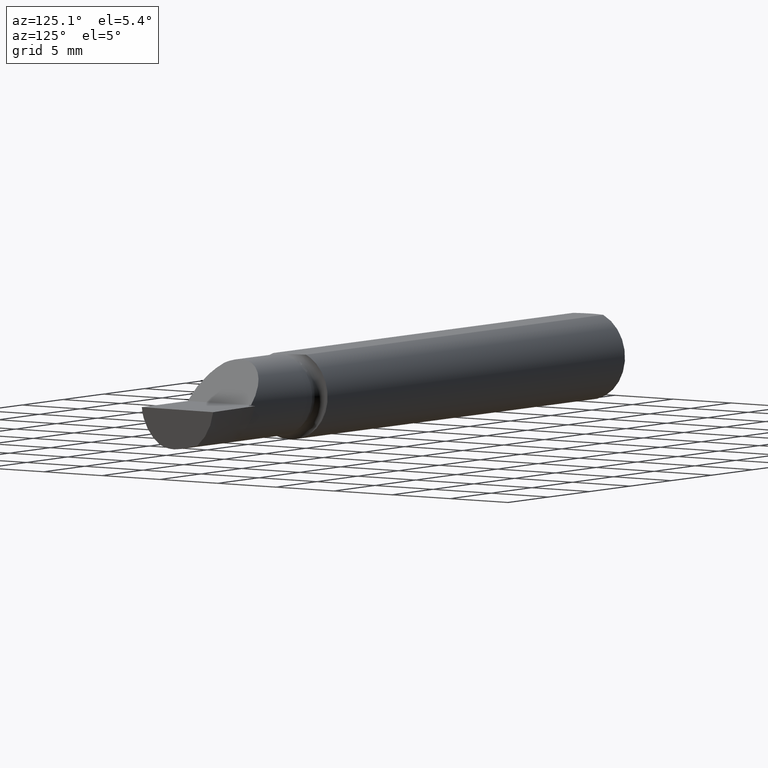
[diagram: clean part render]
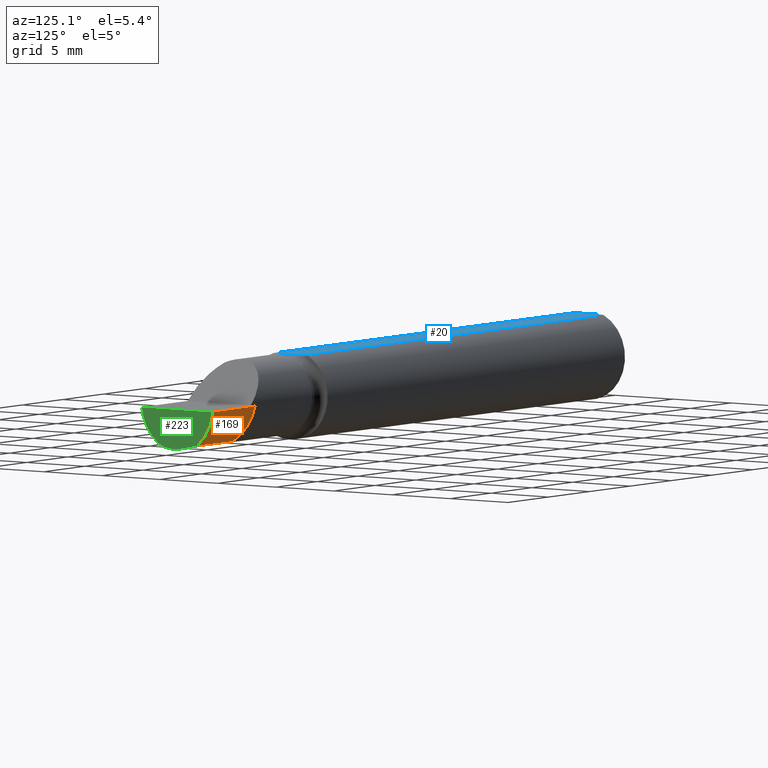
[diagram: same view with three faces highlighted in distinct colors, each labeled with its STEP entity id]
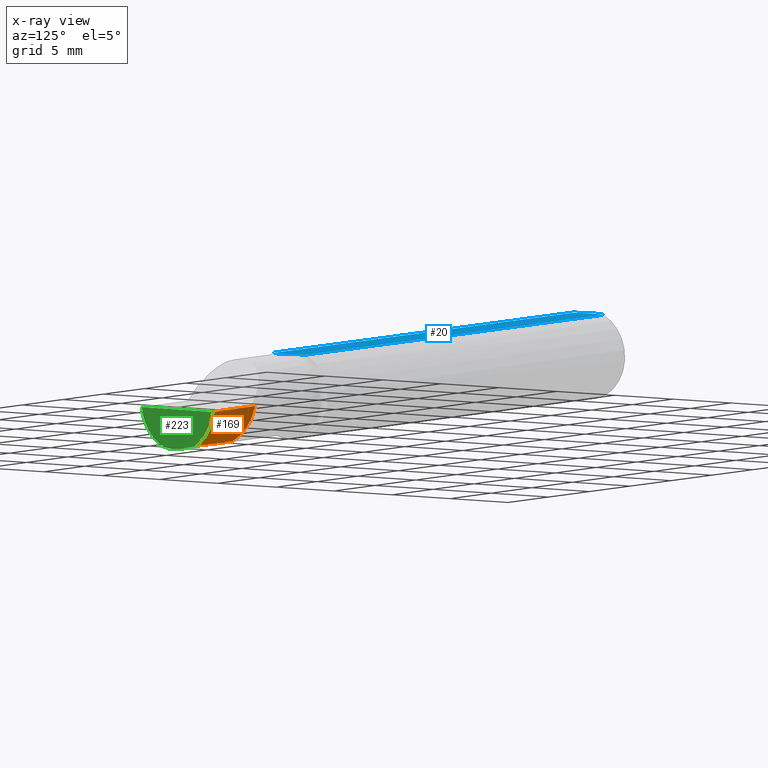
[diagram: x-ray of the same camera — body ghosted, the three highlighted faces saturated]
A machine part, auxiliary view with three faces highlighted in distinct colors.
The next image is the same camera in x-ray (body ghosted, the three faces saturated) — at least one of them is partly hidden behind the body in this view.
Their STEP definitions:

[orange] entity #169 — the highlighted conical surface has half-angle 2.3 deg.
#1 = CARTESIAN_POINT ( 'NONE',  ( 2.000000000000000444, 0.1230320432091886601, 1.365923996832131609E-16 ) ) ;
#14 = CARTESIAN_POINT ( 'NONE',  ( 1.952213385647788124, 0.05611622732575551054, -0.09886116505631198370 ) ) ;
#40 = CARTESIAN_POINT ( 'NONE',  ( 1.789291615022104320, 0.1143652283911643641, -2.675152579924983035E-17 ) ) ;
#67 = CARTESIAN_POINT ( 'NONE',  ( 1.851797773675369463, 0.04556048680043759541, -0.1011048569682544418 ) ) ;
#92 = ORIENTED_EDGE ( 'NONE', *, *, #429, .T. ) ;
#111 = EDGE_CURVE ( 'NONE', #451, #315, #586, .T. ) ;
#124 = CARTESIAN_POINT ( 'NONE',  ( 2.000000000000000444, 0.1230320432091886601, 1.365923996832131609E-16 ) ) ;
#125 = FACE_OUTER_BOUND ( 'NONE', #220, .T. ) ;
#129 = CARTESIAN_POINT ( 'NONE',  ( 1.784999999999999698, 0.03724939420668419571, -0.1028714342337037485 ) ) ;
#161 = CARTESIAN_POINT ( 'NONE',  ( 1.865249755877900206, 0.1174932720492049554, -2.675152579924983035E-17 ) ) ;
#169 = ADVANCED_FACE ( 'NONE', ( #125 ), #698, .T. ) ;
#172 = VERTEX_POINT ( 'NONE', #595 ) ;
#178 = CARTESIAN_POINT ( 'NONE',  ( 1.784999999999999698, 0.03724939420668419571, -0.1028714342337037485 ) ) ;
#187 = DIRECTION ( 'NONE',  ( 1.000000000000000000, 0.000000000000000000, 0.000000000000000000 ) ) ;
#202 = ORIENTED_EDGE ( 'NONE', *, *, #299, .F. ) ;
#220 = EDGE_LOOP ( 'NONE', ( #202, #721, #717, #92 ) ) ;
#231 = CARTESIAN_POINT ( 'NONE',  ( 1.784999999999999698, 0.1141884658606290570, -2.561107494060246767E-17 ) ) ;
#284 = AXIS2_PLACEMENT_3D ( 'NONE', #414, #187, #353 ) ;
#299 = EDGE_CURVE ( 'NONE', #172, #630, #707, .T. ) ;
#315 = VERTEX_POINT ( 'NONE', #178 ) ;
#340 = CARTESIAN_POINT ( 'NONE',  ( 1.797874846902438817, 0.1147187088710839437, -2.675152579924983035E-17 ) ) ;
#348 = CARTESIAN_POINT ( 'NONE',  ( 1.918719883305409768, 0.05278643763162971930, -0.09956893370477960803 ) ) ;
#353 = DIRECTION ( 'NONE',  ( 0.000000000000000000, 0.000000000000000000, -1.000000000000000000 ) ) ;
#390 = CARTESIAN_POINT ( 'NONE',  ( 1.989836728749098116, 0.09206796351314358584, -0.07398901831240398130 ) ) ;
#405 = DIRECTION ( 'NONE',  ( 0.000000000000000000, 0.000000000000000000, 1.000000000000000000 ) ) ;
#414 = CARTESIAN_POINT ( 'NONE',  ( 1.770000000000000018, -0.03985000000000000347, 0.03500000000000000333 ) ) ;
#429 = EDGE_CURVE ( 'NONE', #451, #630, #515, .T. ) ;
#451 = VERTEX_POINT ( 'NONE', #231 ) ;
#472 = CARTESIAN_POINT ( 'NONE',  ( 1.818367502936216296, 0.04167884343248300094, -0.1019299257361760275 ) ) ;
#508 = CARTESIAN_POINT ( 'NONE',  ( 1.932624814323846252, 0.1202642073425122388, -2.675152579924983035E-17 ) ) ;
#515 = B_SPLINE_CURVE_WITH_KNOTS ( 'NONE', 3,
 ( #672, #40, #681, #340, #161, #508, #1 ),
 .UNSPECIFIED., .F., .F.,
 ( 4, 3, 4 ),
 ( 0.007412947955592157946, 0.007740246287614602379, 0.01287856577457158376 ),
 .UNSPECIFIED. ) ;
#520 = CARTESIAN_POINT ( 'NONE',  ( 1.784999999999999698, -0.03985000000000000347, 0.03500000000000000333 ) ) ;
#578 = EDGE_CURVE ( 'NONE', #315, #172, #737, .T. ) ;
#579 = CARTESIAN_POINT ( 'NONE',  ( 1.985726806420196722, 0.05927217896694587235, -0.09819034682666372138 ) ) ;
#580 = CARTESIAN_POINT ( 'NONE',  ( 1.994805817244760915, 0.1142654070005342803, -0.03980490106881612311 ) ) ;
#586 = CIRCLE ( 'NONE', #621, 0.1579647079720536695 ) ;
#595 = CARTESIAN_POINT ( 'NONE',  ( 1.985726806420196722, 0.05927217896694587235, -0.09819034682666372138 ) ) ;
#598 = DIRECTION ( 'NONE',  ( -1.000000000000000000, -0.000000000000000000, -0.000000000000000000 ) ) ;
#621 = AXIS2_PLACEMENT_3D ( 'NONE', #520, #598, #405 ) ;
#630 = VERTEX_POINT ( 'NONE', #124 ) ;
#672 = CARTESIAN_POINT ( 'NONE',  ( 1.784999999999999698, 0.1141884658606290570, -2.561107494060246767E-17 ) ) ;
#681 = CARTESIAN_POINT ( 'NONE',  ( 1.793583230658401195, 0.1145419760103439100, -2.675152579924983035E-17 ) ) ;
#683 = CARTESIAN_POINT ( 'NONE',  ( 1.985726806420196722, 0.05927217896694587235, -0.09819034682666372138 ) ) ;
#698 = CONICAL_SURFACE ( 'NONE', #284, 0.1573622457375457862, 0.04014257279587007260 ) ;
#704 = CARTESIAN_POINT ( 'NONE',  ( 2.000000000000000444, 0.1230320432091886601, 1.365923996832131609E-16 ) ) ;
#707 =( BOUNDED_CURVE ( )  B_SPLINE_CURVE ( 3, ( #683, #390, #580, #704 ),
 .UNSPECIFIED., .F., .F. ) 
 B_SPLINE_CURVE_WITH_KNOTS ( ( 4, 4 ),
 ( 4.052266036501334767, 4.770552096199204506 ),
 .UNSPECIFIED. ) 
 CURVE ( )  GEOMETRIC_REPRESENTATION_ITEM ( )  RATIONAL_B_SPLINE_CURVE ( ( 1.000000000000000000, 0.9574655789890720303, 0.9574655789890720303, 1.000000000000000000 ) ) 
 REPRESENTATION_ITEM ( '' )  );
#717 = ORIENTED_EDGE ( 'NONE', *, *, #111, .F. ) ;
#721 = ORIENTED_EDGE ( 'NONE', *, *, #578, .F. ) ;
#737 = B_SPLINE_CURVE_WITH_KNOTS ( 'NONE', 3,
 ( #129, #472, #67, #348, #14, #579 ),
 .UNSPECIFIED., .F., .F.,
 ( 4, 2, 4 ),
 ( 0.0003129481283555254944, 0.002878164730113078398, 0.005443381331870631411 ),
 .UNSPECIFIED. ) ;

[blue] entity #20 — the highlighted planar face has unit normal (-0, 0, -1).
#9 = CARTESIAN_POINT ( 'NONE',  ( 0.004000000000000036512, 1.339884691376347251E-16, 0.1138499999999999790 ) ) ;
#20 = ADVANCED_FACE ( 'NONE', ( #503 ), #66, .F. ) ;
#22 = ORIENTED_EDGE ( 'NONE', *, *, #518, .F. ) ;
#30 = VERTEX_POINT ( 'NONE', #633 ) ;
#44 = CARTESIAN_POINT ( 'NONE',  ( 1.456194170315906700, 0.01966653246187217291, 0.1138500000000000068 ) ) ;
#55 = DIRECTION ( 'NONE',  ( -0.000000000000000000, 0.000000000000000000, -1.000000000000000000 ) ) ;
#61 = CARTESIAN_POINT ( 'NONE',  ( 1.469125478741955426, -0.01974817578328879122, 0.1138500000000000068 ) ) ;
#63 = ORIENTED_EDGE ( 'NONE', *, *, #506, .F. ) ;
#66 = PLANE ( 'NONE',  #474 ) ;
#72 = CARTESIAN_POINT ( 'NONE',  ( 1.450099858026828503, 0.05124158467494938085, 0.1138499999999999790 ) ) ;
#74 = VERTEX_POINT ( 'NONE', #525 ) ;
#79 = B_SPLINE_CURVE_WITH_KNOTS ( 'NONE', 3,
 ( #173, #397, #634, #325, #44, #271, #217, #439, #695, #574, #61, #406 ),
 .UNSPECIFIED., .F., .F.,
 ( 4, 2, 2, 2, 2, 4 ),
 ( 0.01180676251349892063, 0.01228781726753095695, 0.01276887202156299500, 0.01324992677559503132, 0.01349045415261104948, 0.01373098152962706764 ),
 .UNSPECIFIED. ) ;
#80 = CARTESIAN_POINT ( 'NONE',  ( 1.469125478741925228, -0.02795346128119784168, 0.1138500000000000206 ) ) ;
#87 = CARTESIAN_POINT ( 'NONE',  ( 0.004000000000000036512, 1.339884691376347251E-16, 0.1138499999999999790 ) ) ;
#88 = VERTEX_POINT ( 'NONE', #72 ) ;
#119 = CARTESIAN_POINT ( 'NONE',  ( 1.461205118362342681, -0.05124158467487750779, 0.1138499999999999790 ) ) ;
#133 = CARTESIAN_POINT ( 'NONE',  ( 1.461205118362342681, -0.05124158467487750779, 0.1138499999999999790 ) ) ;
#135 = ORIENTED_EDGE ( 'NONE', *, *, #318, .T. ) ;
#152 = ORIENTED_EDGE ( 'NONE', *, *, #486, .F. ) ;
#153 = CARTESIAN_POINT ( 'NONE',  ( 0.01499999999999997689, 0.05124158467494933922, 0.1138499999999999790 ) ) ;
#173 = CARTESIAN_POINT ( 'NONE',  ( 1.450099858026828503, 0.05124158467494938085, 0.1138499999999999790 ) ) ;
#174 = CARTESIAN_POINT ( 'NONE',  ( 0.01165733727326997635, -0.04309719483846850135, 0.1138500000000000068 ) ) ;
#180 = EDGE_CURVE ( 'NONE', #407, #507, #605, .T. ) ;
#200 = VECTOR ( 'NONE', #225, 39.37007874015748143 ) ;
#217 = CARTESIAN_POINT ( 'NONE',  ( 1.462649919956250821, 0.001411420734820286686, 0.1138499999999999790 ) ) ;
#225 = DIRECTION ( 'NONE',  ( 1.000000000000000000, 0.000000000000000000, 0.000000000000000000 ) ) ;
#232 = CARTESIAN_POINT ( 'NONE',  ( 0.01499999999999889096, -0.05124158467495320418, 0.1138499999999999790 ) ) ;
#245 = CARTESIAN_POINT ( 'NONE',  ( 1.467730992247341382, -0.03274307989214254866, 0.1138499999999999651 ) ) ;
#271 = CARTESIAN_POINT ( 'NONE',  ( 1.460335521868628916, 0.007462837152791067935, 0.1138500000000000206 ) ) ;
#288 = CARTESIAN_POINT ( 'NONE',  ( 0.004000000000000024369, -0.008893328491875992017, 0.1138500000000000068 ) ) ;
#318 = EDGE_CURVE ( 'NONE', #74, #30, #522, .T. ) ;
#325 = CARTESIAN_POINT ( 'NONE',  ( 1.454329718837755747, 0.02583075694165800143, 0.1138499999999999512 ) ) ;
#349 = CARTESIAN_POINT ( 'NONE',  ( 1.469125478742641988, -0.02299999999992861921, 0.1138499999999999790 ) ) ;
#355 = ORIENTED_EDGE ( 'NONE', *, *, #731, .T. ) ;
#357 = VECTOR ( 'NONE', #702, 39.37007874015748143 ) ;
#359 = CARTESIAN_POINT ( 'NONE',  ( 1.469125478742641988, -0.02299999999992861921, 0.1138499999999999790 ) ) ;
#363 = CARTESIAN_POINT ( 'NONE',  ( 0.005048877309342266438, 0.01758388412467034104, 0.1138499999999999790 ) ) ;
#387 = CARTESIAN_POINT ( 'NONE',  ( 0.000000000000000000, 0.06250000000000000000, 0.1138499999999999790 ) ) ;
#397 = CARTESIAN_POINT ( 'NONE',  ( 1.450413920054870465, 0.04482795582615921315, 0.1138500000000000068 ) ) ;
#403 = DIRECTION ( 'NONE',  ( -1.000000000000000000, 0.000000000000000000, 0.000000000000000000 ) ) ;
#406 = CARTESIAN_POINT ( 'NONE',  ( 1.469125478742641988, -0.02299999999992861921, 0.1138499999999999790 ) ) ;
#407 = VERTEX_POINT ( 'NONE', #349 ) ;
#426 = CARTESIAN_POINT ( 'NONE',  ( 0.01166372796929991337, 0.04311276575425566221, 0.1138500000000000068 ) ) ;
#439 = CARTESIAN_POINT ( 'NONE',  ( 1.465849677403787688, -0.007551878619868967503, 0.1138500000000000068 ) ) ;
#454 = CARTESIAN_POINT ( 'NONE',  ( 0.005050941570226233183, -0.01759485039588845959, 0.1138500000000000068 ) ) ;
#458 = VERTEX_POINT ( 'NONE', #153 ) ;
#469 = LINE ( 'NONE', #655, #357 ) ;
#471 = CARTESIAN_POINT ( 'NONE',  ( 1.464637665657123833, -0.04203843790588229073, 0.1138499999999999374 ) ) ;
#474 = AXIS2_PLACEMENT_3D ( 'NONE', #387, #55, #403 ) ;
#486 = EDGE_CURVE ( 'NONE', #458, #88, #504, .T. ) ;
#503 = FACE_OUTER_BOUND ( 'NONE', #680, .T. ) ;
#504 = LINE ( 'NONE', #735, #200 ) ;
#506 = EDGE_CURVE ( 'NONE', #88, #407, #79, .T. ) ;
#507 = VERTEX_POINT ( 'NONE', #119 ) ;
#518 = EDGE_CURVE ( 'NONE', #507, #30, #469, .T. ) ;
#522 = B_SPLINE_CURVE_WITH_KNOTS ( 'NONE', 3,
 ( #9, #288, #454, #632, #174, #232 ),
 .UNSPECIFIED., .F., .F.,
 ( 4, 2, 4 ),
 ( 0.003565120586336817388, 0.004228774539354131917, 0.004892428492371446447 ),
 .UNSPECIFIED. ) ;
#525 = CARTESIAN_POINT ( 'NONE',  ( 0.004000000000000036512, 1.339884691376347251E-16, 0.1138499999999999790 ) ) ;
#538 = CARTESIAN_POINT ( 'NONE',  ( 0.008868018857268082991, 0.03466134699282779480, 0.1138500000000000068 ) ) ;
#573 = ORIENTED_EDGE ( 'NONE', *, *, #180, .F. ) ;
#574 = CARTESIAN_POINT ( 'NONE',  ( 1.468528558870396905, -0.01664413276230341035, 0.1138500000000000206 ) ) ;
#604 = CARTESIAN_POINT ( 'NONE',  ( 0.01499999999999997689, 0.05124158467494933922, 0.1138499999999999790 ) ) ;
#605 = B_SPLINE_CURVE_WITH_KNOTS ( 'NONE', 3,
 ( #359, #80, #245, #471, #654, #133 ),
 .UNSPECIFIED., .F., .F.,
 ( 4, 2, 4 ),
 ( 0.0006089030974486594333, 0.0009752953036855046328, 0.001341687509922349615 ),
 .UNSPECIFIED. ) ;
#632 = CARTESIAN_POINT ( 'NONE',  ( 0.008868457554986192148, -0.03466157167475557993, 0.1138499999999999790 ) ) ;
#633 = CARTESIAN_POINT ( 'NONE',  ( 0.01499999999999889096, -0.05124158467495320418, 0.1138499999999999790 ) ) ;
#634 = CARTESIAN_POINT ( 'NONE',  ( 1.451439432581650868, 0.03841286295236275017, 0.1138500000000000068 ) ) ;
#654 = CARTESIAN_POINT ( 'NONE',  ( 1.462883389708317994, -0.04662951822242863281, 0.1138499999999999651 ) ) ;
#655 = CARTESIAN_POINT ( 'NONE',  ( 2.000000000000000000, -0.05124158467494933922, 0.1138499999999999790 ) ) ;
#664 = CARTESIAN_POINT ( 'NONE',  ( 0.004000000000000046921, 0.008887812657913576192, 0.1138500000000000068 ) ) ;
#680 = EDGE_LOOP ( 'NONE', ( #63, #152, #355, #135, #22, #573 ) ) ;
#695 = CARTESIAN_POINT ( 'NONE',  ( 1.466883333493380404, -0.01054779757992718205, 0.1138500000000000068 ) ) ;
#702 = DIRECTION ( 'NONE',  ( -1.000000000000000000, -0.000000000000000000, -0.000000000000000000 ) ) ;
#713 = B_SPLINE_CURVE_WITH_KNOTS ( 'NONE', 3,
 ( #604, #426, #538, #363, #664, #87 ),
 .UNSPECIFIED., .F., .F.,
 ( 4, 2, 4 ),
 ( 0.002238635905266132559, 0.002901878245801474757, 0.003565120586336817388 ),
 .UNSPECIFIED. ) ;
#731 = EDGE_CURVE ( 'NONE', #458, #74, #713, .T. ) ;
#735 = CARTESIAN_POINT ( 'NONE',  ( 2.000000000000000000, 0.05124158467494933922, 0.1138499999999999790 ) ) ;

[green] entity #223 — the highlighted planar face has unit normal (-0.992, 0.0344, 0.1219).
#3 = CARTESIAN_POINT ( 'NONE',  ( 1.982156700830108420, 0.0005252078160287397806, -0.1106774010230302391 ) ) ;
#4 = VECTOR ( 'NONE', #643, 39.37007874015748854 ) ;
#10 = ORIENTED_EDGE ( 'NONE', *, *, #310, .T. ) ;
#41 = CARTESIAN_POINT ( 'NONE',  ( 1.981311885083313129, -0.01508616771999835363, -0.1131499999999999728 ) ) ;
#46 = CARTESIAN_POINT ( 'NONE',  ( 1.981037618911598353, -0.02299999999999998920, -0.1131499999999999451 ) ) ;
#83 = CARTESIAN_POINT ( 'NONE',  ( 1.981037618911598353, -0.02299999999999998920, -0.1131499999999999451 ) ) ;
#93 = CARTESIAN_POINT ( 'NONE',  ( 1.980336203196702893, -0.05667042965035926083, -0.1093612000171224480 ) ) ;
#95 = ORIENTED_EDGE ( 'NONE', *, *, #248, .T. ) ;
#96 = CARTESIAN_POINT ( 'NONE',  ( 1.991409262084114173, -0.1248500000000000026, -2.675152579924983035E-17 ) ) ;
#124 = CARTESIAN_POINT ( 'NONE',  ( 2.000000000000000444, 0.1230320432091886601, 1.365923996832131609E-16 ) ) ;
#136 = CARTESIAN_POINT ( 'NONE',  ( 1.999651453384543975, 0.1129748807117507969, -2.675152579924983035E-17 ) ) ;
#145 = EDGE_CURVE ( 'NONE', #455, #630, #659, .T. ) ;
#149 = VECTOR ( 'NONE', #183, 39.37007874015748854 ) ;
#172 = VERTEX_POINT ( 'NONE', #595 ) ;
#183 = DIRECTION ( 'NONE',  ( 0.05933815604225937956, 0.9764240451797694398, 0.2075453377753393447 ) ) ;
#192 = CARTESIAN_POINT ( 'NONE',  ( 1.980711417153110165, -0.07203478260869596028, -0.1019730974057271450 ) ) ;
#193 = VERTEX_POINT ( 'NONE', #3 ) ;
#213 = DIRECTION ( 'NONE',  ( 0.1219414168599300269, 0.000000000000000000, 0.9925372994775525370 ) ) ;
#222 = CARTESIAN_POINT ( 'NONE',  ( 1.991409262084114173, -0.1248500000000000026, -2.675152579924983035E-17 ) ) ;
#223 = ADVANCED_FACE ( 'NONE', ( #262 ), #615, .F. ) ;
#237 = LINE ( 'NONE', #635, #149 ) ;
#248 = EDGE_CURVE ( 'NONE', #555, #666, #653, .T. ) ;
#255 = EDGE_CURVE ( 'NONE', #555, #455, #309, .T. ) ;
#262 = FACE_OUTER_BOUND ( 'NONE', #723, .T. ) ;
#266 = EDGE_CURVE ( 'NONE', #666, #193, #459, .T. ) ;
#267 = CARTESIAN_POINT ( 'NONE',  ( 1.982156700830108420, 0.0005252078160287397806, -0.1106774010230302391 ) ) ;
#272 = CARTESIAN_POINT ( 'NONE',  ( 1.981037618911598353, -0.02299999999999998920, -0.1131499999999999451 ) ) ;
#299 = EDGE_CURVE ( 'NONE', #172, #630, #707, .T. ) ;
#309 =( BOUNDED_CURVE ( )  B_SPLINE_CURVE ( 3, ( #610, #322, #501, #222 ),
 .UNSPECIFIED., .F., .T. ) 
 B_SPLINE_CURVE_WITH_KNOTS ( ( 4, 4 ),
 ( 0.3400731368317720937, 1.295854645076544687 ),
 .UNSPECIFIED. ) 
 CURVE ( )  GEOMETRIC_REPRESENTATION_ITEM ( )  RATIONAL_B_SPLINE_CURVE ( ( 1.000000000000000000, 0.9253113031975114255, 0.9253113031975114255, 1.000000000000000000 ) ) 
 REPRESENTATION_ITEM ( '' )  );
#310 = EDGE_CURVE ( 'NONE', #193, #172, #237, .T. ) ;
#322 = CARTESIAN_POINT ( 'NONE',  ( 1.982472901410195831, -0.1058238923506804735, -0.07810414337051783951 ) ) ;
#326 = CARTESIAN_POINT ( 'NONE',  ( 1.955238188985510828, 0.1245951600936585635, -0.3647779084914555825 ) ) ;
#390 = CARTESIAN_POINT ( 'NONE',  ( 1.989836728749098116, 0.09206796351314358584, -0.07398901831240398130 ) ) ;
#395 = DIRECTION ( 'NONE',  ( -0.9919506264397697226, 0.03437759245050123896, 0.1218693392246629065 ) ) ;
#431 = ORIENTED_EDGE ( 'NONE', *, *, #145, .F. ) ;
#432 = CARTESIAN_POINT ( 'NONE',  ( 1.980446780631421655, -0.04004838414703439098, -0.1131500000000000006 ) ) ;
#438 = ORIENTED_EDGE ( 'NONE', *, *, #255, .F. ) ;
#450 = CARTESIAN_POINT ( 'NONE',  ( 1.981686279704756526, -0.007215688241264535743, -0.1123227792732134772 ) ) ;
#455 = VERTEX_POINT ( 'NONE', #96 ) ;
#459 =( BOUNDED_CURVE ( )  B_SPLINE_CURVE ( 3, ( #272, #41, #450, #267 ),
 .UNSPECIFIED., .F., .F. ) 
 B_SPLINE_CURVE_WITH_KNOTS ( ( 4, 4 ),
 ( 0.2749416817183522044, 0.4843811919576650471 ),
 .UNSPECIFIED. ) 
 CURVE ( )  GEOMETRIC_REPRESENTATION_ITEM ( )  RATIONAL_B_SPLINE_CURVE ( ( 1.000000000000000000, 0.9963479302455158226, 0.9963479302455158226, 1.000000000000000000 ) ) 
 REPRESENTATION_ITEM ( '' )  );
#501 = CARTESIAN_POINT ( 'NONE',  ( 1.986326683697315687, -0.1248500000000000304, -0.04136944408486546015 ) ) ;
#541 = ORIENTED_EDGE ( 'NONE', *, *, #299, .T. ) ;
#555 = VERTEX_POINT ( 'NONE', #192 ) ;
#567 = CARTESIAN_POINT ( 'NONE',  ( 1.980711417153110165, -0.07203478260869596028, -0.1019730974057271450 ) ) ;
#580 = CARTESIAN_POINT ( 'NONE',  ( 1.994805817244760915, 0.1142654070005342803, -0.03980490106881612311 ) ) ;
#595 = CARTESIAN_POINT ( 'NONE',  ( 1.985726806420196722, 0.05927217896694587235, -0.09819034682666372138 ) ) ;
#607 = AXIS2_PLACEMENT_3D ( 'NONE', #326, #395, #213 ) ;
#610 = CARTESIAN_POINT ( 'NONE',  ( 1.980711417153110165, -0.07203478260869596028, -0.1019730974057271450 ) ) ;
#615 = PLANE ( 'NONE',  #607 ) ;
#630 = VERTEX_POINT ( 'NONE', #124 ) ;
#635 = CARTESIAN_POINT ( 'NONE',  ( 1.982219527385583824, 0.001559034337336924611, -0.1104576544122976983 ) ) ;
#643 = DIRECTION ( 'NONE',  ( 0.03463576215158789551, 0.9994000019912839816, 0.000000000000000000 ) ) ;
#653 =( BOUNDED_CURVE ( )  B_SPLINE_CURVE ( 3, ( #567, #93, #432, #46 ),
 .UNSPECIFIED., .F., .F. ) 
 B_SPLINE_CURVE_WITH_KNOTS ( ( 4, 4 ),
 ( 6.109908296632412750, 6.558126988897938325 ),
 .UNSPECIFIED. ) 
 CURVE ( )  GEOMETRIC_REPRESENTATION_ITEM ( )  RATIONAL_B_SPLINE_CURVE ( ( 1.000000000000000000, 0.9833282873014980163, 0.9833282873014980163, 1.000000000000000000 ) ) 
 REPRESENTATION_ITEM ( '' )  );
#659 = LINE ( 'NONE', #136, #4 ) ;
#666 = VERTEX_POINT ( 'NONE', #83 ) ;
#683 = CARTESIAN_POINT ( 'NONE',  ( 1.985726806420196722, 0.05927217896694587235, -0.09819034682666372138 ) ) ;
#704 = CARTESIAN_POINT ( 'NONE',  ( 2.000000000000000444, 0.1230320432091886601, 1.365923996832131609E-16 ) ) ;
#707 =( BOUNDED_CURVE ( )  B_SPLINE_CURVE ( 3, ( #683, #390, #580, #704 ),
 .UNSPECIFIED., .F., .F. ) 
 B_SPLINE_CURVE_WITH_KNOTS ( ( 4, 4 ),
 ( 4.052266036501334767, 4.770552096199204506 ),
 .UNSPECIFIED. ) 
 CURVE ( )  GEOMETRIC_REPRESENTATION_ITEM ( )  RATIONAL_B_SPLINE_CURVE ( ( 1.000000000000000000, 0.9574655789890720303, 0.9574655789890720303, 1.000000000000000000 ) ) 
 REPRESENTATION_ITEM ( '' )  );
#723 = EDGE_LOOP ( 'NONE', ( #95, #730, #10, #541, #431, #438 ) ) ;
#730 = ORIENTED_EDGE ( 'NONE', *, *, #266, .T. ) ;